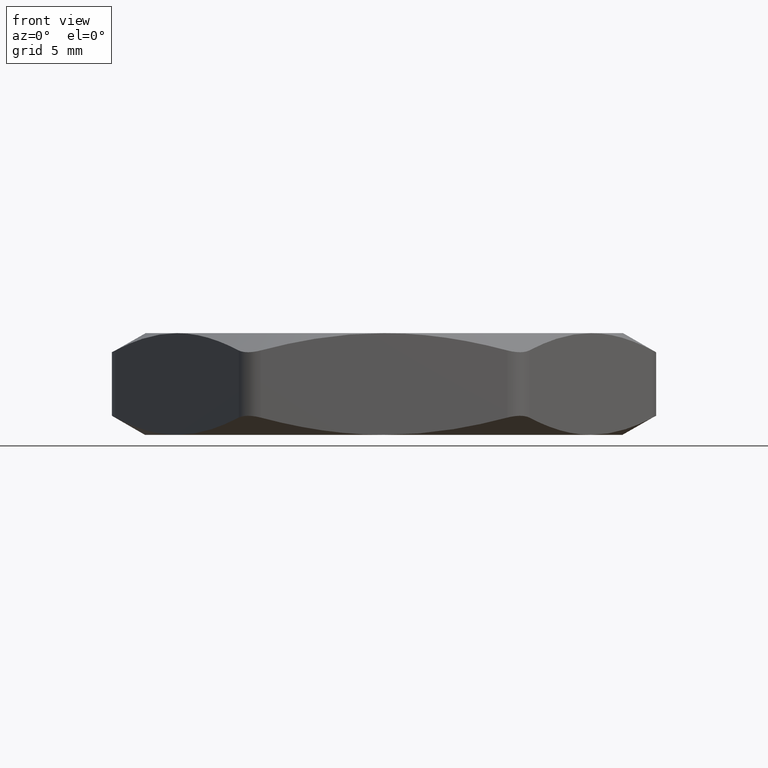
[diagram: clean part render]
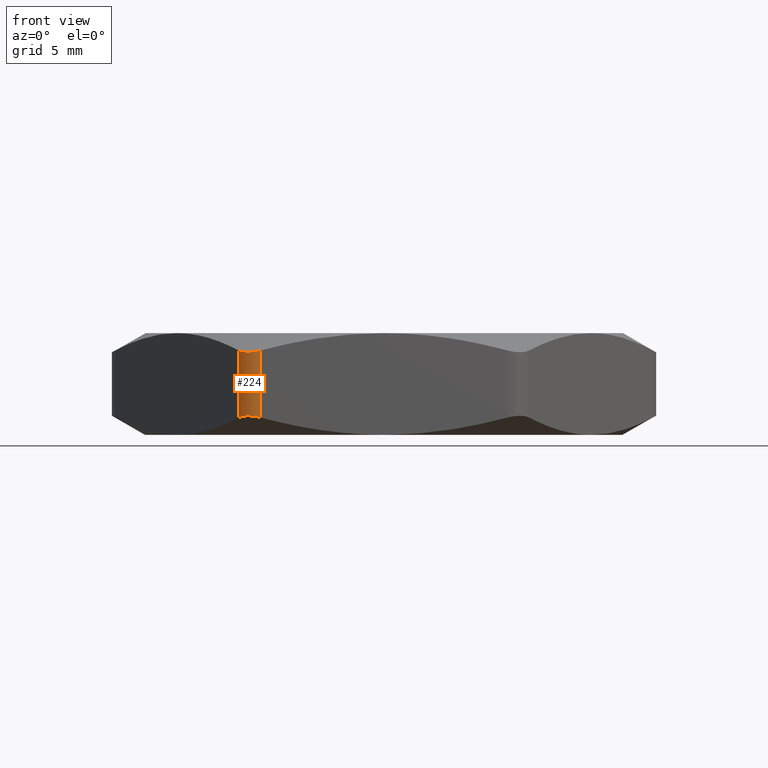
[diagram: same view with one face highlighted and labeled with its STEP entity id]
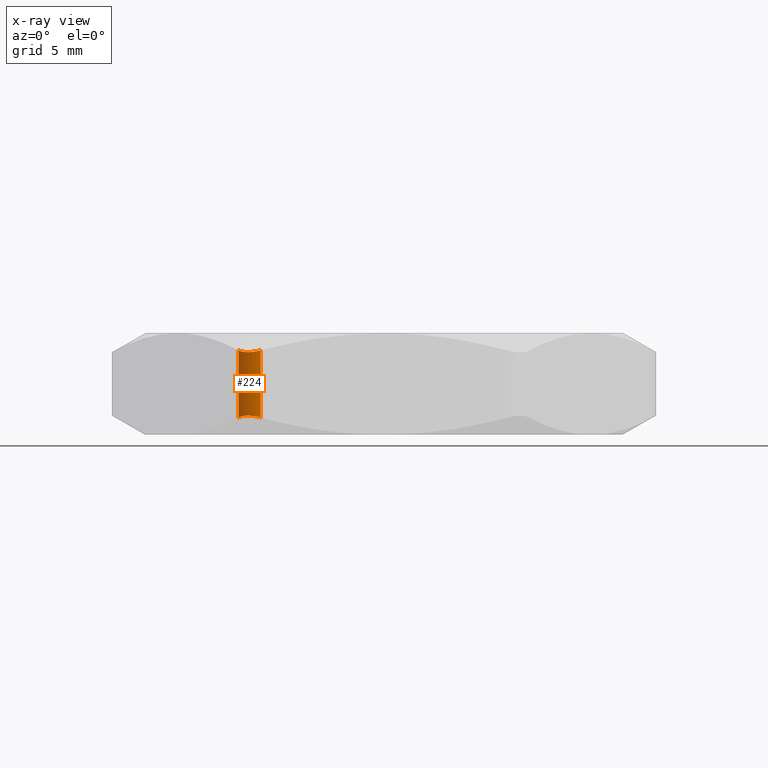
[diagram: x-ray of the same camera — body ghosted, the highlighted face saturated]
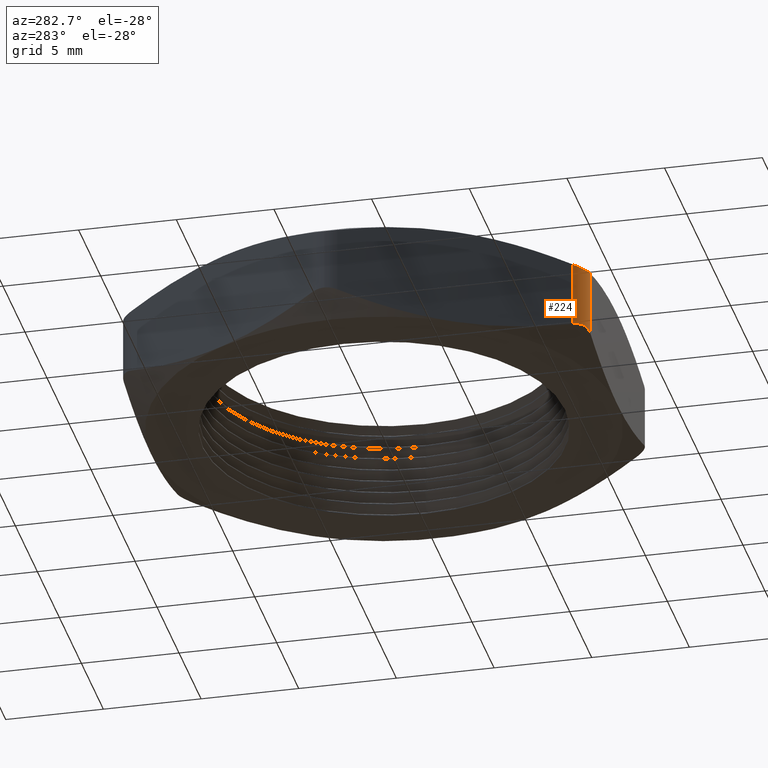
[diagram: same view with one face highlighted and labeled with its STEP entity id]
A machine part, front view. The second image highlights one B-rep face of the part: STEP entity #224.
The next image is the same camera in x-ray: the body ghosted, the highlighted face saturated — about 0% of this face is hidden behind the body in this view.
A second angle (auxiliary view) of the same face is appended — the face is thin or edge-on in the first view.
In plain terms, the highlighted cylindrical surface (edge-blend (fillet) strip) has radius 1.27 mm, axis along (0, 0, -1).
Its self-contained STEP definition (entity closure, byte-faithful):
#74 = VERTEX_POINT ( 'NONE', #476 ) ;
#106 = EDGE_CURVE ( 'NONE', #139, #74, #706, .T. ) ;
#115 = EDGE_CURVE ( 'NONE', #74, #2201, #603, .T. ) ;
#139 = VERTEX_POINT ( 'NONE', #593 ) ;
#154 = ORIENTED_EDGE ( 'NONE', *, *, #2203, .F. ) ;
#216 = EDGE_CURVE ( 'NONE', #2204, #139, #723, .T. ) ;
#224 = ADVANCED_FACE ( 'NONE', ( #760 ), #736, .T. ) ;
#225 = EDGE_LOOP ( 'NONE', ( #226, #227, #228, #154 ) ) ;
#226 = ORIENTED_EDGE ( 'NONE', *, *, #115, .F. ) ;
#227 = ORIENTED_EDGE ( 'NONE', *, *, #106, .F. ) ;
#228 = ORIENTED_EDGE ( 'NONE', *, *, #216, .F. ) ;
#476 = CARTESIAN_POINT ( 'NONE',  ( -0.2857883832488651900, -0.4449999999999999500, 0.1660132874683280800 ) ) ;
#580 = DIRECTION ( 'NONE',  ( 0.0000000000000000000, 0.0000000000000000000, 1.000000000000000000 ) ) ;
#581 = VECTOR ( 'NONE', #580, 39.37007874015748100 ) ;
#582 = CARTESIAN_POINT ( 'NONE',  ( -0.2857883832488651300, -0.4450000000000000100, 0.2000000000000000100 ) ) ;
#593 = CARTESIAN_POINT ( 'NONE',  ( -0.2857883832488581900, -0.4450000000000121100, 0.03398671253167556000 ) ) ;
#602 = CARTESIAN_POINT ( 'NONE',  ( -0.2857883832488651900, -0.4449999999999999500, 0.1660132874683280800 ) ) ;
#603 = B_SPLINE_CURVE_WITH_KNOTS ( 'NONE', 3,
 ( #602, #640, #639, #638, #648, #647, #646, #645, #644, #643 ),
 .UNSPECIFIED., .F., .F.,
 ( 4, 2, 2, 2, 4 ),
 ( 8.673617379884034500E-019, 0.0003346004369649004600, 0.0006692008739298000600, 0.001003801310894699700, 0.001338401747859599200 ),
 .UNSPECIFIED. ) ;
#638 = CARTESIAN_POINT ( 'NONE',  ( -0.2748511540334757100, -0.4583635455379325700, 0.1627976685536250100 ) ) ;
#639 = CARTESIAN_POINT ( 'NONE',  ( -0.2810295571764266900, -0.4521507818863176300, 0.1640004151482058700 ) ) ;
#640 = CARTESIAN_POINT ( 'NONE',  ( -0.2836373149338620200, -0.4487257596121367900, 0.1648744388444225400 ) ) ;
#643 = CARTESIAN_POINT ( 'NONE',  ( -0.2424871130596454900, -0.4699999999999999700, 0.1660132874683275800 ) ) ;
#644 = CARTESIAN_POINT ( 'NONE',  ( -0.2467906257256606800, -0.4700000000000000300, 0.1648740745843228200 ) ) ;
#645 = CARTESIAN_POINT ( 'NONE',  ( -0.2511558071752925100, -0.4694348894501830200, 0.1639838078123754800 ) ) ;
#646 = CARTESIAN_POINT ( 'NONE',  ( -0.2595695197585319300, -0.4671926470331584900, 0.1627948480342429600 ) ) ;
#647 = CARTESIAN_POINT ( 'NONE',  ( -0.2637174244368318800, -0.4654820836751403200, 0.1624851264982157300 ) ) ;
#648 = CARTESIAN_POINT ( 'NONE',  ( -0.2713318858670769600, -0.4610770634088220400, 0.1624891193021269500 ) ) ;
#706 = LINE ( 'NONE', #582, #581 ) ;
#723 = B_SPLINE_CURVE_WITH_KNOTS ( 'NONE', 3,
 ( #747, #746, #745, #744, #743, #765, #764, #763, #762, #761 ),
 .UNSPECIFIED., .F., .F.,
 ( 4, 2, 2, 2, 4 ),
 ( 2.672068989920464900E-017, 0.0003346004369648419700, 0.0006692008739296571600, 0.001003801310894472400, 0.001338401747859287600 ),
 .UNSPECIFIED. ) ;
#732 = DIRECTION ( 'NONE',  ( -1.000000000000000000, 0.0000000000000000000, 0.0000000000000000000 ) ) ;
#733 = DIRECTION ( 'NONE',  ( 0.0000000000000000000, 0.0000000000000000000, -1.000000000000000000 ) ) ;
#734 = CARTESIAN_POINT ( 'NONE',  ( -0.2424871130596432400, -0.4199999999999999800, 0.2000000000000000100 ) ) ;
#735 = AXIS2_PLACEMENT_3D ( 'NONE', #734, #733, #732 ) ;
#736 = CYLINDRICAL_SURFACE ( 'NONE', #735, 0.05000000000000001000 ) ;
#743 = CARTESIAN_POINT ( 'NONE',  ( -0.2636385070808271400, -0.4655188377220404500, 0.03751088069787283900 ) ) ;
#744 = CARTESIAN_POINT ( 'NONE',  ( -0.2595288975878155500, -0.4672098544214262600, 0.03720233144637472700 ) ) ;
#745 = CARTESIAN_POINT ( 'NONE',  ( -0.2510592848663352200, -0.4694541266722352400, 0.03599958485179412900 ) ) ;
#746 = CARTESIAN_POINT ( 'NONE',  ( -0.2467892496896482400, -0.4699999999999999200, 0.03512556115558335800 ) ) ;
#747 = CARTESIAN_POINT ( 'NONE',  ( -0.2424871130596454300, -0.4699999999999999700, 0.03398671253167244400 ) ) ;
#760 = FACE_OUTER_BOUND ( 'NONE', #225, .T. ) ;
#761 = CARTESIAN_POINT ( 'NONE',  ( -0.2857883832488581900, -0.4450000000000121100, 0.03398671253167556000 ) ) ;
#762 = CARTESIAN_POINT ( 'NONE',  ( -0.2836366269158466200, -0.4487269512942931900, 0.03512592541568104700 ) ) ;
#763 = CARTESIAN_POINT ( 'NONE',  ( -0.2809646360989463400, -0.4522247540468876700, 0.03601619218762625000 ) ) ;
#764 = CARTESIAN_POINT ( 'NONE',  ( -0.2748159409127409200, -0.4583901216755989500, 0.03720515196575768100 ) ) ;
#765 = CARTESIAN_POINT ( 'NONE',  ( -0.2712605972507649000, -0.4611270308204727400, 0.03751487350178458300 ) ) ;
#1502 = CARTESIAN_POINT ( 'NONE',  ( -0.2424871130596454300, -0.4699999999999999700, 0.03398671253167244400 ) ) ;
#1503 = DIRECTION ( 'NONE',  ( 0.0000000000000000000, 0.0000000000000000000, -1.000000000000000000 ) ) ;
#1504 = VECTOR ( 'NONE', #1503, 39.37007874015748100 ) ;
#1505 = CARTESIAN_POINT ( 'NONE',  ( -0.2424871130596432400, -0.4699999999999999700, 0.2000000000000000100 ) ) ;
#1515 = CARTESIAN_POINT ( 'NONE',  ( -0.2424871130596454900, -0.4699999999999999700, 0.1660132874683275800 ) ) ;
#1517 = LINE ( 'NONE', #1505, #1504 ) ;
#2201 = VERTEX_POINT ( 'NONE', #1515 ) ;
#2203 = EDGE_CURVE ( 'NONE', #2201, #2204, #1517, .T. ) ;
#2204 = VERTEX_POINT ( 'NONE', #1502 ) ;